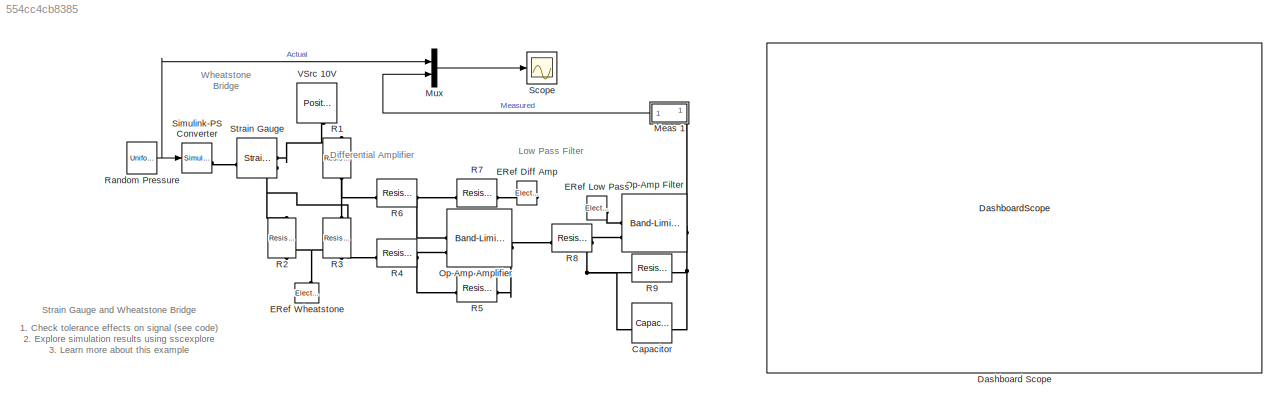
MODEL slx_554cc4cb8385
KIND model
CONFIG AbsTol = 1e-3
CONFIG EnableMultiTasking = on
CONFIG FixedStep = auto
CONFIG MaxStep = auto
CONFIG MinStep = auto
CONFIG RelTol = 1e-3
CONFIG SampleTimeConstraint = Unconstrained
CONFIG SolverName = ode15s
CONFIG StartTime = 0.0
CONFIG StopFcn = ee_addSimlogTimeStamp(bdroot)
CONFIG StopTime = 10
BLOCK [Reference] Capacitor  REF=ee_lib/Passive/Capacitor
  SourceBlock = ee_lib/Passive/Capacitor
  SourceType = Capacitor
BLOCK [DashboardScope] Dashboard Scope
BLOCK [Reference] ERef Diff Amp  REF=fl_lib/Electrical/Electrical Elements/Electrical Reference
  NameLocation = top
  SourceBlock = fl_lib/Electrical/Electrical Elements/Electrical Reference
  SourceType = Electrical Reference
BLOCK [Reference] ERef Low Pass  REF=fl_lib/Electrical/Electrical Elements/Electrical Reference
  NameLocation = top
  SourceBlock = fl_lib/Electrical/Electrical Elements/Electrical Reference
  SourceType = Electrical Reference
BLOCK [Reference] ERef Wheatstone  REF=fl_lib/Electrical/Electrical Elements/Electrical Reference
  NameLocation = right
  SourceBlock = fl_lib/Electrical/Electrical Elements/Electrical Reference
  SourceType = Electrical Reference
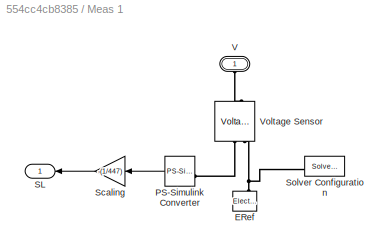
BLOCK [SubSystem] Meas 1
  NameLocation = top
BLOCK [Reference] Meas 1/ERef  REF=fl_lib/Electrical/Electrical Elements/Electrical Reference
  NameLocation = right
  SourceBlock = fl_lib/Electrical/Electrical Elements/Electrical Reference
  SourceType = Electrical Reference
BLOCK [Reference] Meas 1/PS-Simulink Converter  REF=nesl_utility/PS-Simulink
Converter
  SourceBlock = nesl_utility/PS-Simulink\nConverter
  SourceType = PS-Simulink\nConverter
BLOCK [Outport] Meas 1/SL
  VectorParamsAs1DForOutWhenUnconnected = off
BLOCK [Gain] Meas 1/Scaling
  Gain = -(1/447)
BLOCK [Reference] Meas 1/Solver Configuration  REF=nesl_utility/Solver
Configuration
  SourceBlock = nesl_utility/Solver\nConfiguration
  SourceType = Solver\nConfiguration
BLOCK [PMIOPort] Meas 1/V
  NameLocation = right
  Side = Left
BLOCK [Reference] Meas 1/Voltage Sensor  REF=fl_lib/Electrical/Electrical Sensors/Voltage Sensor
  NameLocation = right
  SourceBlock = fl_lib/Electrical/Electrical Sensors/Voltage Sensor
  SourceType = Voltage Sensor
BLOCK [Mux] Mux
  DisplayOption = bar
  Inputs = 2
BLOCK [Reference] Op-Amp Amplifier  REF=ee_lib/Integrated Circuits/Band-Limited Op-Amp
  SourceBlock = ee_lib/Integrated Circuits/Band-Limited Op-Amp
  SourceType = Band-Limited Op-Amp
BLOCK [Reference] Op-Amp Filter  REF=ee_lib/Integrated Circuits/Band-Limited Op-Amp
  SourceBlock = ee_lib/Integrated Circuits/Band-Limited Op-Amp
  SourceType = Band-Limited Op-Amp
BLOCK [Reference] R1  REF=fl_lib/Electrical/Electrical Elements/Resistor
  NameLocation = right
  SourceBlock = fl_lib/Electrical/Electrical Elements/Resistor
  SourceType = Resistor
BLOCK [Reference] R2  REF=fl_lib/Electrical/Electrical Elements/Resistor
  NameLocation = left
  SourceBlock = fl_lib/Electrical/Electrical Elements/Resistor
  SourceType = Resistor
BLOCK [Reference] R3  REF=fl_lib/Electrical/Electrical Elements/Resistor
  NameLocation = left
  SourceBlock = fl_lib/Electrical/Electrical Elements/Resistor
  SourceType = Resistor
BLOCK [Reference] R4  REF=fl_lib/Electrical/Electrical Elements/Resistor
  SourceBlock = fl_lib/Electrical/Electrical Elements/Resistor
  SourceType = Resistor
BLOCK [Reference] R5  REF=fl_lib/Electrical/Electrical Elements/Resistor
  SourceBlock = fl_lib/Electrical/Electrical Elements/Resistor
  SourceType = Resistor
BLOCK [Reference] R6  REF=fl_lib/Electrical/Electrical Elements/Resistor
  NameLocation = top
  SourceBlock = fl_lib/Electrical/Electrical Elements/Resistor
  SourceType = Resistor
BLOCK [Reference] R7  REF=fl_lib/Electrical/Electrical Elements/Resistor
  NameLocation = top
  SourceBlock = fl_lib/Electrical/Electrical Elements/Resistor
  SourceType = Resistor
BLOCK [Reference] R8  REF=fl_lib/Electrical/Electrical Elements/Resistor
  NameLocation = top
  SourceBlock = fl_lib/Electrical/Electrical Elements/Resistor
  SourceType = Resistor
BLOCK [Reference] R9  REF=ee_lib/Passive/Resistor
  SourceBlock = ee_lib/Passive/Resistor
  SourceType = Resistor
BLOCK [UniformRandomNumber] Random Pressure 
  Maximum = 0.01
  Minimum = 0
  SampleTime = 0.5
BLOCK [Scope] Scope
  ActiveDisplayYMaximum = 0.01053
  ActiveDisplayYMinimum = -0.00118
  Floating = off
  GraphicalSettings = {"GraphicalSettings":{"LegacySettings":true,"Style":{"AxesScalingProperties":{"ScaleAxesLimitsAtStop":false},"Style":{"AxesColor":"[0 0 0]","ChannelNames":[""],"ColorOrder":"[1 1 0.0666666666666667;0.0745098039215686 0.623529411764706 1;1 0.411764705882353 0.16078431372549;0.392156862745098 0.831372549019608 0.0745098039215686;0.717647058823529 0.274509803921569 1;0.0588235294117647 1 1;1 0.074509...<+573ch>
  MultipleDisplayCache = [{"MaxYLimMag":0.01053,"MaxYLimReal":0.01053,"MinYLimMag":0,"MinYLimReal":-0.00118,"PlotAsMagnitudePhase":false,"ShowGrid":true,"ShowLegend":true,"Title":"%<SignalLabel>","YLabel":""}]
  NumInputPorts = 1
  ScopeFrameLocation = window
  ShowLegend = on
  WasSavedAsWebScope = on
  WindowPosition = [488.000000,222.000000,560.000000,420.000000,]
BLOCK [Reference] Simulink-PS Converter  REF=nesl_utility/Simulink-PS
Converter
  NameLocation = top
  SourceBlock = nesl_utility/Simulink-PS\nConverter
  SourceType = Simulink-PS\nConverter
BLOCK [Reference] Strain Gauge  REF=ee_lib/Sensors &
Transducers/Strain Gauge
  SourceBlock = ee_lib/Sensors &\nTransducers/Strain Gauge
  SourceType = Strain Gauge
BLOCK [Reference] VSrc 10V  REF=ee_lib/Sources/Positive Supply Rail
  NameLocation = right
  SourceBlock = ee_lib/Sources/Positive Supply Rail
  SourceType = Positive Supply Rail
ANNOTATION (root): 1. Check tolerance effects on signal ( see code ) 2. Explore simulation results using sscexplore 3. Learn more about this example
ANNOTATION (root): Differential Amplifier
ANNOTATION (root): Low Pass Filter
ANNOTATION (root): Strain Gauge and Wheatstone Bridge
ANNOTATION (root): Wheatstone Bridge
LINE Meas 1/PS-Simulink Converter:1 -> Meas 1/Scaling:1
LINE Meas 1/Scaling:1 -> Meas 1/SL:1
LINE Meas 1:1 -> Mux:2
LINE Mux:1 -> Scope:1
NET Random Pressure :1 -> Mux:1, Simulink-PS Converter:1
PNET net1: Capacitor:LConn1 -- Op-Amp Filter:LConn2 -- R8:RConn1 -- R9:LConn1
PNET net2: Capacitor:RConn1 -- Meas 1:LConn1 -- Op-Amp Filter:RConn1 -- R9:RConn1
PLINE ERef Diff Amp:LConn1 -- R7:RConn1
PLINE ERef Low Pass:LConn1 -- Op-Amp Filter:LConn1
PNET net3: ERef Wheatstone:LConn1 -- R2:RConn1 -- R3:RConn1
PNET net4: Meas 1/ERef:LConn1 -- Meas 1/Solver Configuration:RConn1 -- Meas 1/Voltage Sensor:RConn2
PLINE Meas 1/PS-Simulink Converter:LConn1 -- Meas 1/Voltage Sensor:RConn1
PLINE Meas 1/V:RConn1 -- Meas 1/Voltage Sensor:LConn1
PNET net5: Op-Amp Amplifier:LConn1 -- R6:RConn1 -- R7:LConn1
PNET net6: Op-Amp Amplifier:LConn2 -- R4:RConn1 -- R5:LConn1
PNET net7: Op-Amp Amplifier:RConn1 -- R5:RConn1 -- R8:LConn1
PNET net8: R1:LConn1 -- Strain Gauge:RConn1 -- VSrc 10V:RConn1
PNET net9: R1:RConn1 -- R3:LConn1 -- R6:LConn1
PNET net10: R2:LConn1 -- R4:LConn1 -- Strain Gauge:RConn2
PLINE Simulink-PS Converter:RConn1 -- Strain Gauge:LConn1
note: NET lines group one-source signal fan-out (src -> all destinations, sorted); 1:1 wires keep LINE; PNET lines group multi-terminal physical nets as a canonical sorted terminal list (undirected conserving connections); 2-terminal nets keep the pairwise PLINE form
